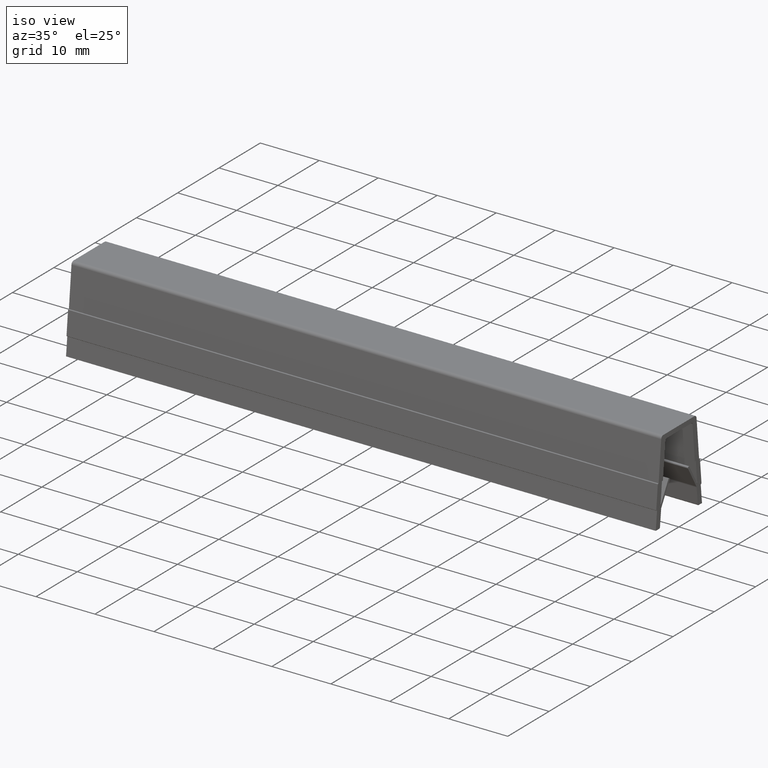
[diagram: clean part render]
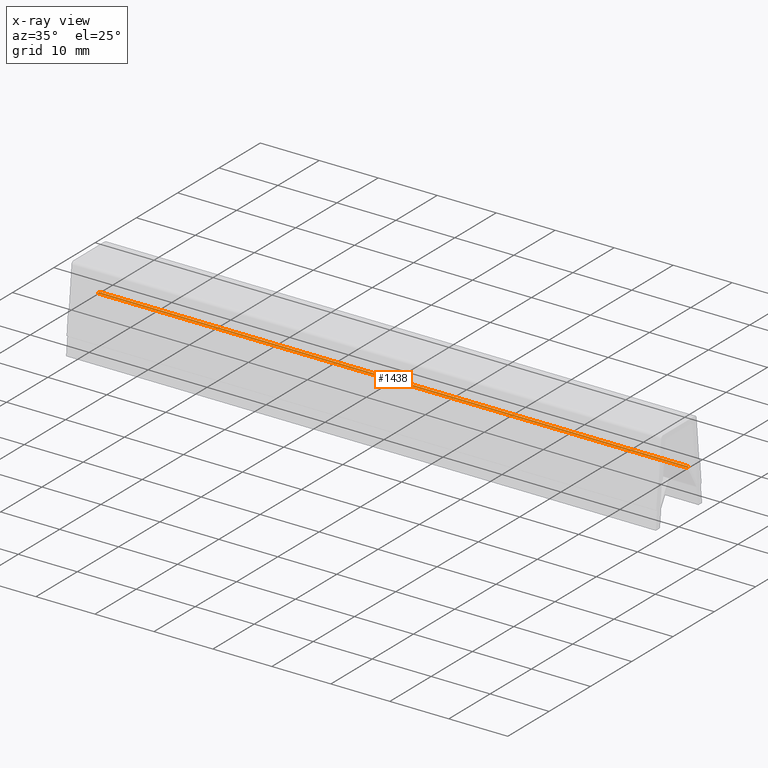
[diagram: x-ray — body ghosted, one internal face saturated and labeled with its STEP entity id]
A machine part, iso view, then the same camera in x-ray: the body is ghosted and one INTERNAL B-rep face — a face not visible from any outside direction — is saturated and labeled: STEP entity #1438.
In plain terms, the highlighted cylindrical surface (edge-blend (fillet) strip) has radius 0.2 mm, axis along (-1, 0, 0).
Its self-contained STEP definition (entity closure, byte-faithful):
#91=CARTESIAN_POINT('',(100.0,2.210368937345054,-6.576129799545897));
#92=VERTEX_POINT('',#91);
#102=CARTESIAN_POINT('',(0.0,2.210368937345054,-6.576129799545897));
#103=VERTEX_POINT('',#102);
#104=CARTESIAN_POINT('',(100.0,2.210368937345054,-6.576129799545897));
#105=DIRECTION('',(-1.0,0.0,0.0));
#106=VECTOR('',#105,100.0);
#107=LINE('',#104,#106);
#108=EDGE_CURVE('',#92,#103,#107,.T.);
#494=CARTESIAN_POINT('',(100.0,2.391408272605835,-6.377030595146062));
#495=VERTEX_POINT('',#494);
#502=CARTESIAN_POINT('',(100.0,2.410368937345050,-6.576129799545897));
#503=DIRECTION('',(1.0,0.0,0.0));
#504=DIRECTION('',(0.0,-1.0,6.123234E-017));
#505=AXIS2_PLACEMENT_3D('',#502,#503,#504);
#506=CIRCLE('',#505,0.199999999999999);
#507=EDGE_CURVE('',#495,#92,#506,.T.);
#699=CARTESIAN_POINT('',(0.0,2.391408272605835,-6.377030595146062));
#700=VERTEX_POINT('',#699);
#701=CARTESIAN_POINT('',(0.0,2.410368937345050,-6.576129799545897));
#702=DIRECTION('',(1.0,0.0,0.0));
#703=DIRECTION('',(0.0,6.123234E-017,1.0));
#704=AXIS2_PLACEMENT_3D('',#701,#702,#703);
#705=CIRCLE('',#704,0.200000000000000);
#706=EDGE_CURVE('',#700,#103,#705,.T.);
#1417=CARTESIAN_POINT('',(100.0,2.391408272605835,-6.377030595146062));
#1418=DIRECTION('',(-1.0,0.0,0.0));
#1419=VECTOR('',#1418,100.0);
#1420=LINE('',#1417,#1419);
#1421=EDGE_CURVE('',#495,#700,#1420,.T.);
#1427=CARTESIAN_POINT('',(100.000000009999990,2.410368937345053,-6.576129799545897));
#1428=DIRECTION('',(-1.0,0.0,0.0));
#1429=DIRECTION('',(0.0,0.739865975598308,-0.672754292555584));
#1430=AXIS2_PLACEMENT_3D('',#1427,#1428,#1429);
#1431=CYLINDRICAL_SURFACE('',#1430,0.199999999999999);
#1432=ORIENTED_EDGE('',*,*,#108,.F.);
#1433=ORIENTED_EDGE('',*,*,#507,.F.);
#1434=ORIENTED_EDGE('',*,*,#1421,.T.);
#1435=ORIENTED_EDGE('',*,*,#706,.T.);
#1436=EDGE_LOOP('',(#1432,#1433,#1434,#1435));
#1437=FACE_OUTER_BOUND('',#1436,.T.);
#1438=ADVANCED_FACE('',(#1437),#1431,.T.);